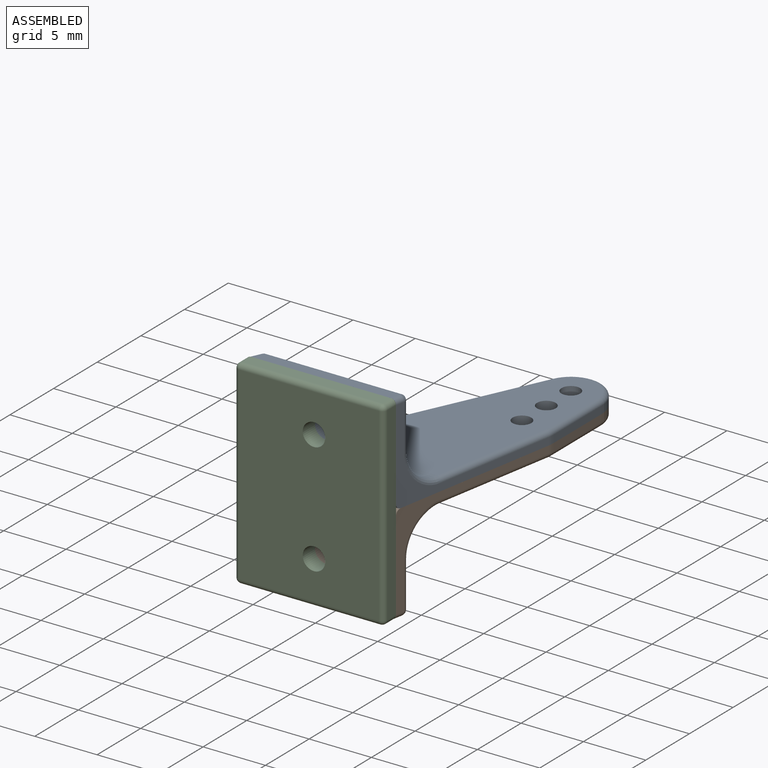
[diagram: assembled view]
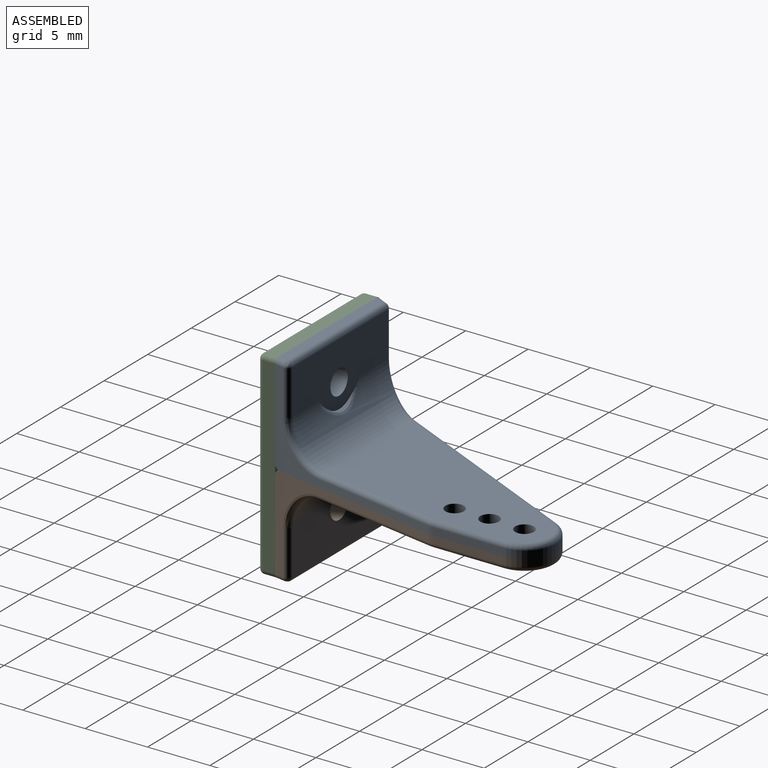
[diagram: assembled view, second angle]
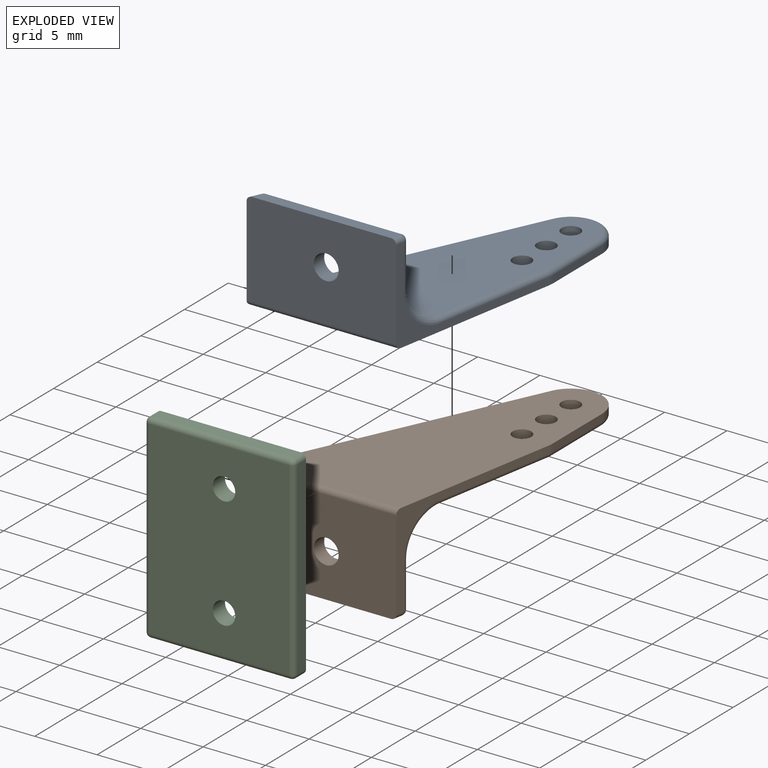
[diagram: exploded view]
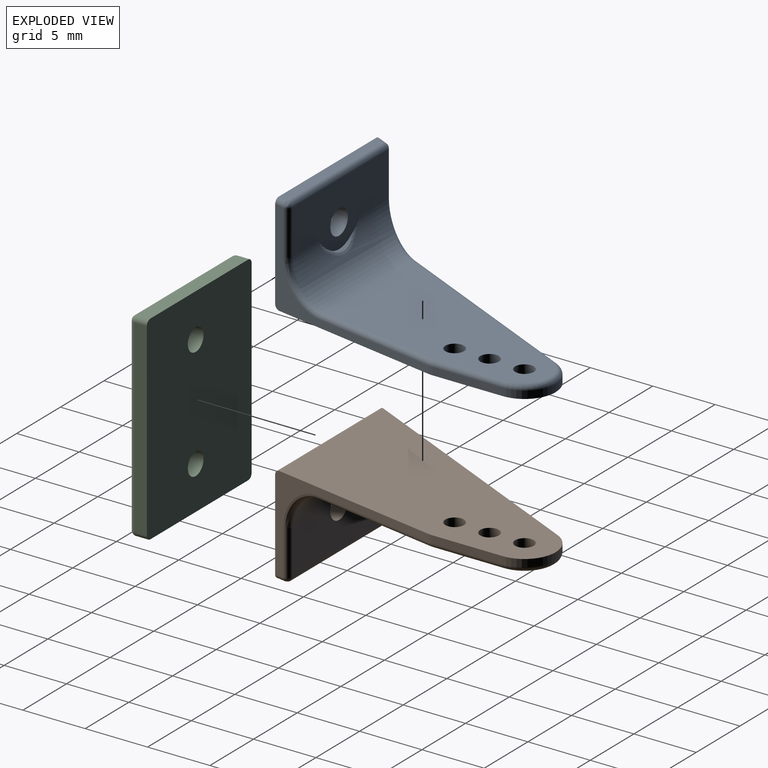
[diagram: exploded view, second angle]
ASSEMBLY  parts=3 mates=2
PART A: 32 faces, bbox 14.8x23x8.1 mm
  f0: cylinder r=3mm len=11.52mm, axis (1,0,0), area 43.2mm2, adj f1,f12,f23,f24,f30
  f1: plane 17.9x11.72mm, normal (0,0,1), area 120.3mm2, adj f0,f7,f8,f10,f25,f26,f27,f28
  f2: cylinder r=2.5mm len=4.77mm, axis (0,0,-1), area 4.1mm2, adj f3,f9,f11,f27
  f3: plane 5.51x0.6mm, normal (1,0,0), area 3.3mm2, adj f2,f4,f11,f29
  f4: cylinder r=2.5mm len=0.6mm, axis (0,0,-1), area 0.3mm2, adj f3,f5,f11,f28
  f5: plane 14x7.63mm, normal (0.98,-0.17,0), area 16.2mm2, adj f4,f6,f11,f18,f22,f24,f26,f31
  f6: plane 12.08x7.68mm, normal (0,-1,0), area 88mm2, adj f5,f9,f13,f14,f16,f18,f31
  f7: cylinder r=0.75mm len=1.5mm, axis (0,0,-1), area 4.7mm2, adj f1,f11
  f8: cylinder r=0.75mm len=1.5mm, axis (0,0,-1), area 4.7mm2, adj f1,f11
  f9: plane 21.13x9.81mm, normal (-0.91,0.42,0), area 24.1mm2, adj f2,f6,f11,f16,f21,f23,f25,f31
  f10: cylinder r=0.75mm len=1.5mm, axis (0,0,-1), area 4.7mm2, adj f1,f11
  f11: plane 22.1x14.32mm, normal (0,0,-1), area 179.6mm2, adj f2,f3,f4,f5,f7,f8,f9,f10
  f12: plane 10.98x5.13mm, normal (0,1,0), area 40.8mm2, adj f0,f14,f15,f17,f21,f22,f30
  f13: plane 11.29x0.8mm, normal (0,0,1), area 8.8mm2, adj f6,f16,f17,f18
  f14: cylinder r=1mm len=2mm, axis (0,1,0), area 7.5mm2, adj f6,f12
  f15: cylinder r=1.97mm len=1.83mm, axis (0,-1,0), area 0mm2, adj f12,f30
  f16: cylinder r=0.4mm len=1.14mm, axis (-0.42,-0.91,0), area 0.6mm2, adj f6,f9,f13,f19
  f17: cylinder r=0.4mm len=10.92mm, axis (-1,0,0), area 6.9mm2, adj f12,f13,f19,f20
  f18: cylinder r=0.4mm len=0.87mm, axis (0.17,0.98,0), area 0.5mm2, adj f5,f6,f13,f20
  f19: sphere r=0.4mm, area 0.2mm2, adj f16,f17,f21
  f20: sphere r=0.4mm, area 0.2mm2, adj f17,f18,f22
  f21: cylinder r=0.4mm len=3.6mm, axis (0,0,-1), area 1.6mm2, adj f9,f12,f19,f23
  f22: cylinder r=0.4mm len=3.6mm, axis (0,0,-1), area 2.5mm2, adj f5,f12,f20,f24
  f23: bspline ~3.99x3.99mm, area 2.7mm2, adj f0,f9,f21,f25
  f24: bspline ~3.47x3.4mm, area 3.3mm2, adj f0,f5,f22,f26
  f25: cylinder r=0.4mm len=16.85mm, axis (-0.42,-0.91,0), area 11.5mm2, adj f1,f9,f23,f27
  f26: cylinder r=0.4mm len=9.91mm, axis (0.17,0.98,0), area 6.3mm2, adj f1,f5,f24,f28
  f27: torus R=2.1mm, axis (0,0,1), area 4.1mm2, adj f1,f2,f25,f29
  f28: torus R=2.1mm, axis (0,0,1), area 0.3mm2, adj f1,f4,f26,f29
  f29: cylinder r=0.4mm len=5.52mm, axis (0,1,0), area 3.5mm2, adj f1,f3,f27,f28
  f30: bspline ~4.74x2.03mm, area 1.9mm2, adj f0,f12,f15
  f31: cylinder r=0.4mm len=12.07mm, axis (-1,0,0), area 7.5mm2, adj f5,f6,f9,f11
PART B: 32 faces, bbox 14.8x23x8.1 mm
  f0: cylinder r=3mm len=11.52mm, axis (-1,0,0), area 43.2mm2, adj f1,f12,f23,f24,f30
  f1: plane 17.9x11.72mm, normal (0,0,1), area 120.3mm2, adj f0,f7,f8,f10,f25,f26,f27,f28
  f2: cylinder r=2.5mm len=4.77mm, axis (0,0,-1), area 4.1mm2, adj f3,f9,f11,f27
  f3: plane 5.51x0.6mm, normal (-1,0,0), area 3.3mm2, adj f2,f4,f11,f29
  f4: cylinder r=2.5mm len=0.6mm, axis (0,0,-1), area 0.3mm2, adj f3,f5,f11,f28
  f5: plane 14x7.63mm, normal (-0.98,-0.17,0), area 16.2mm2, adj f4,f6,f11,f18,f22,f24,f26,f31
  f6: plane 12.08x7.68mm, normal (0,-1,0), area 88mm2, adj f5,f9,f13,f14,f16,f18,f31
  f7: cylinder r=0.75mm len=1.5mm, axis (0,0,-1), area 4.7mm2, adj f1,f11
  f8: cylinder r=0.75mm len=1.5mm, axis (0,0,-1), area 4.7mm2, adj f1,f11
  f9: plane 21.13x9.81mm, normal (0.91,0.42,0), area 24.1mm2, adj f2,f6,f11,f16,f21,f23,f25,f31
  f10: cylinder r=0.75mm len=1.5mm, axis (0,0,-1), area 4.7mm2, adj f1,f11
  f11: plane 22.1x14.32mm, normal (0,0,-1), area 179.6mm2, adj f2,f3,f4,f5,f7,f8,f9,f10
  f12: plane 10.98x5.13mm, normal (0,1,0), area 40.8mm2, adj f0,f14,f15,f17,f21,f22,f30
  f13: plane 11.29x0.8mm, normal (0,0,1), area 8.8mm2, adj f6,f16,f17,f18
  f14: cylinder r=1mm len=2mm, axis (0,1,0), area 7.5mm2, adj f6,f12
  f15: cylinder r=1.97mm len=1.83mm, axis (0,-1,0), area 0mm2, adj f12,f30
  f16: cylinder r=0.4mm len=1.14mm, axis (0.42,-0.91,0), area 0.6mm2, adj f6,f9,f13,f19
  f17: cylinder r=0.4mm len=10.92mm, axis (1,0,0), area 6.9mm2, adj f12,f13,f19,f20
  f18: cylinder r=0.4mm len=0.87mm, axis (-0.17,0.98,0), area 0.5mm2, adj f5,f6,f13,f20
  f19: sphere r=0.4mm, area 0.2mm2, adj f16,f17,f21
  f20: sphere r=0.4mm, area 0.3mm2, adj f17,f18,f22
  f21: cylinder r=0.4mm len=3.6mm, axis (0,0,-1), area 1.6mm2, adj f9,f12,f19,f23
  f22: cylinder r=0.4mm len=3.6mm, axis (0,0,-1), area 2.5mm2, adj f5,f12,f20,f24
  f23: bspline ~3.99x3.99mm, area 2.7mm2, adj f0,f9,f21,f25
  f24: bspline ~3.6x3.55mm, area 3.3mm2, adj f0,f5,f22,f26
  f25: cylinder r=0.4mm len=16.85mm, axis (0.42,-0.91,0), area 11.5mm2, adj f1,f9,f23,f27
  f26: cylinder r=0.4mm len=9.91mm, axis (-0.17,0.98,0), area 6.3mm2, adj f1,f5,f24,f28
  f27: torus R=2.1mm, axis (0,0,1), area 4.1mm2, adj f1,f2,f25,f29
  f28: torus R=2.1mm, axis (0,0,1), area 0.3mm2, adj f1,f4,f26,f29
  f29: cylinder r=0.4mm len=5.52mm, axis (0,1,0), area 3.5mm2, adj f1,f3,f27,f28
  f30: bspline ~4.74x2.03mm, area 1.9mm2, adj f0,f12,f15
  f31: cylinder r=0.4mm len=12.07mm, axis (1,0,0), area 7.5mm2, adj f5,f6,f9,f11
PART C: 20 faces, bbox 16x12x1.4 mm
  f0: plane 15.2x1mm, normal (0,1,0), area 15.2mm2, adj f7,f10,f16,f19
  f1: plane 11.2x1mm, normal (-1,0,0), area 11.2mm2, adj f7,f13,f17,f19
  f2: plane 15.2x1mm, normal (0,-1,0), area 15.2mm2, adj f7,f8,f12,f13
  f3: cylinder r=0.9mm len=1.8mm, axis (0,0,-1), area 7.9mm2, adj f6,f7
  f4: cylinder r=0.9mm len=1.8mm, axis (0,0,-1), area 7.9mm2, adj f6,f7
  f5: plane 11.2x1mm, normal (1,0,0), area 11.2mm2, adj f7,f8,f10,f11
  f6: plane 15.2x11.2mm, normal (0,0,1), area 165.2mm2, adj f3,f4,f11,f12,f16,f17
  f7: plane 16x12mm, normal (0,0,-1), area 186.8mm2, adj f0,f1,f2,f3,f4,f5,f8,f10
  f8: cylinder r=0.4mm len=1mm, axis (0,0,1), area 0.6mm2, adj f2,f5,f7,f9
  f9: sphere r=0.4mm, area 0.3mm2, adj f8,f11,f12
  f10: cylinder r=0.4mm len=1mm, axis (0,0,-1), area 0.6mm2, adj f0,f5,f7,f14
  f11: cylinder r=0.4mm len=11.2mm, axis (0,-1,0), area 7mm2, adj f5,f6,f9,f14
  f12: cylinder r=0.4mm len=15.2mm, axis (-1,0,0), area 9.6mm2, adj f2,f6,f9,f15
  f13: cylinder r=0.4mm len=1mm, axis (0,0,-1), area 0.6mm2, adj f1,f2,f7,f15
  f14: sphere r=0.4mm, area 0.3mm2, adj f10,f11,f16
  f15: sphere r=0.4mm, area 0.3mm2, adj f12,f13,f17
  f16: cylinder r=0.4mm len=15.2mm, axis (1,0,0), area 9.6mm2, adj f0,f6,f14,f18
  f17: cylinder r=0.4mm len=11.2mm, axis (0,1,0), area 7mm2, adj f1,f6,f15,f18
  f18: sphere r=0.4mm, area 0.3mm2, adj f16,f17,f19
  f19: cylinder r=0.4mm len=1mm, axis (0,0,1), area 0.6mm2, adj f0,f1,f7,f18
PLACE A t=(24.71,-12.47,-0.15)mm
PLACE B rot(axis=(0,1,0),180deg) t=(9.71,-12.47,-0.15)mm
PLACE C rot(axis=(0.58,0.58,-0.58),120deg) t=(19.93,-12.47,7.85)mm
MATE fastened B.f8 <-> A.f28  axis (0,0,1) through (9.71,1.93,-0.15)mm
MATE fastened B.f14 <-> C.f4  axis (0,-1,0) through (4.1,-12.47,-4.65)mm
